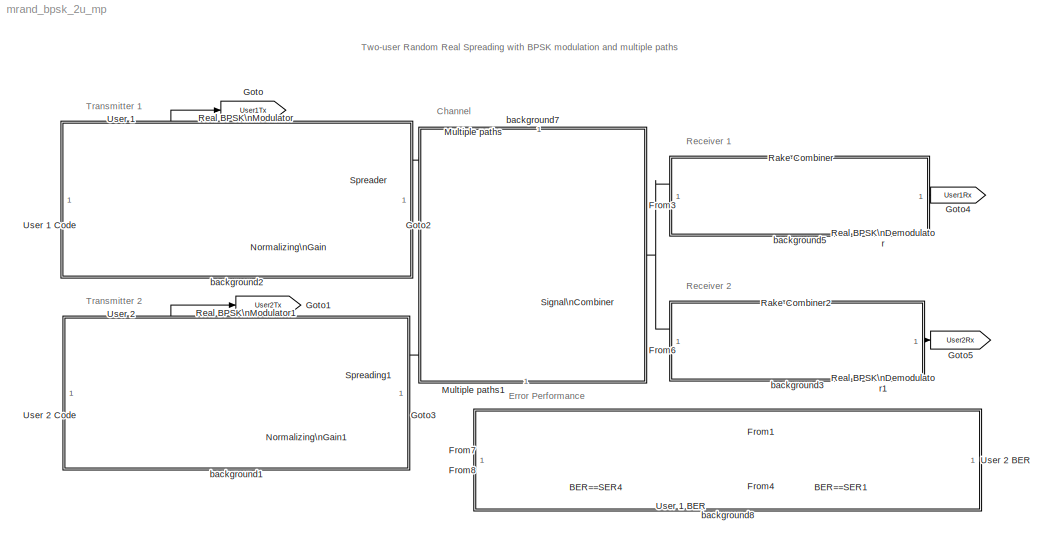
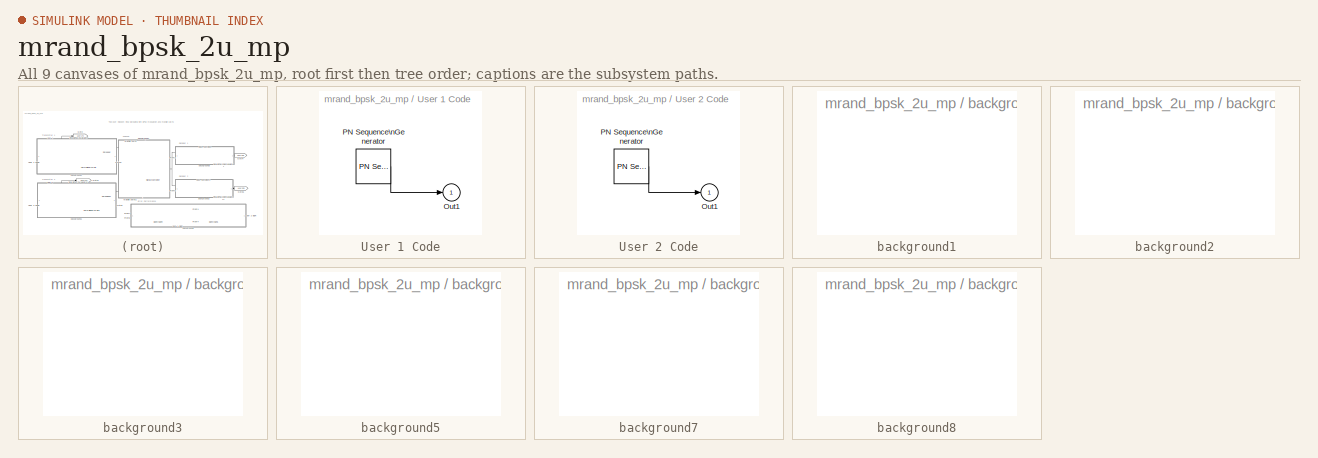
[diagram: thumbnail index - all 9 canvases of the model, root first then tree order]
MODEL mrand_bpsk_2u_mp
KIND model
BLOCK [Reference]    REF=commchan2/AWGN\nChannel
  EbNodB = 10
  EsNodB = 25
  Ports = [1, 1]
  Ps = 1
  SNRdB = 5
  ShowPortLabels = on
  SourceBlock = commchan2/AWGN\nChannel
  SourceType = AWGN Channel
  Tsym = ts
  bitsPerSym = 1
  noiseMode = Signal to noise ratio  (SNR)
  seed = 1237
  variance = 1
BLOCK [Reference]     REF=commutil2/Unipolar to\nBipolar\nConverter
  M = 2
  Ports = [1, 1]
  ShowPortLabels = on
  SourceBlock = commutil2/Unipolar to\nBipolar\nConverter
  SourceType = Unipolar to Bipolar Converter
  polarity = Negative
BLOCK [Reference]      REF=commutil2/Unipolar to\nBipolar\nConverter
  M = 2
  Ports = [1, 1]
  ShowPortLabels = on
  SourceBlock = commutil2/Unipolar to\nBipolar\nConverter
  SourceType = Unipolar to Bipolar Converter
  polarity = Negative
BLOCK [Reference] BER==SER1  REF=commsink2/Error Rate\nCalculation
  N = 0
  PMode = Port
  Ports = [2, 1]
  RsMode2 = off
  SourceBlock = commsink2/Error Rate\nCalculation
  SourceType = Error Rate Calculation
  WsName = ErrorVec
  cp_mode = Entire frame
  maxBits = 1e6
  numErr = 100
  st_delay = 0
  stop = off
  subframe = []
BLOCK [Reference] BER==SER4  REF=commsink2/Error Rate\nCalculation
  N = 0
  PMode = Port
  Ports = [2, 1]
  RsMode2 = off
  SourceBlock = commsink2/Error Rate\nCalculation
  SourceType = Error Rate Calculation
  WsName = ErrorVec
  cp_mode = Entire frame
  maxBits = 1e6
  numErr = 100
  st_delay = 0
  stop = off
  subframe = []
BLOCK [From] From1
  CloseFcn = tagdialog Close
  GotoTag = User2Tx
BLOCK [From] From3
  CloseFcn = tagdialog Close
  GotoTag = User1Code
BLOCK [From] From4
  CloseFcn = tagdialog Close
  GotoTag = User2Rx
BLOCK [From] From6
  CloseFcn = tagdialog Close
  GotoTag = User2Code
BLOCK [From] From7
  CloseFcn = tagdialog Close
  GotoTag = User1Tx
BLOCK [From] From8
  CloseFcn = tagdialog Close
  GotoTag = User1Rx
BLOCK [Goto] Goto
  GotoTag = User1Tx
  TagVisibility = local
BLOCK [Goto] Goto1
  GotoTag = User2Tx
  TagVisibility = local
BLOCK [Goto] Goto2
  GotoTag = User1Code
  TagVisibility = local
BLOCK [Goto] Goto3
  GotoTag = User2Code
  TagVisibility = local
BLOCK [Goto] Goto4
  GotoTag = User1Rx
  TagVisibility = local
BLOCK [Goto] Goto5
  GotoTag = User2Rx
  TagVisibility = local
BLOCK [Reference] Multiple paths  REF=mspread/Multiple paths  (lib defined in mdl_3dcc25b7f51f)
  Ports = [1, 1]
  ShowPortLabels = on
  SourceBlock = mspread/Multiple paths
  SourceType = Multiple Paths
  p = 3
  pd = [0 2 6]
  ts = 1/19200
BLOCK [Reference] Multiple paths1  REF=mspread/Multiple paths  (lib defined in mdl_3dcc25b7f51f)
  Ports = [1, 1]
  ShowPortLabels = on
  SourceBlock = mspread/Multiple paths
  SourceType = Multiple Paths
  p = 3
  pd = [0 3 5]
  ts = 1/19200
BLOCK [Gain] Normalizing\nGain
  Gain = 1/sqrt(63)
BLOCK [Gain] Normalizing\nGain1
  Gain = 1/sqrt(63)
BLOCK [Reference] Rake Combiner  REF=mspread/Rake Combiner  (lib defined in mdl_3dcc25b7f51f)
  Ports = [2, 1]
  ShowPortLabels = on
  SourceBlock = mspread/Rake Combiner
  SourceType = Rake combiner
  pd = [0 2 6]
  pgain = 63
BLOCK [Reference] Rake Combiner2  REF=mspread/Rake Combiner  (lib defined in mdl_3dcc25b7f51f)
  Ports = [2, 1]
  ShowPortLabels = on
  SourceBlock = mspread/Rake Combiner
  SourceType = Rake combiner
  pd = [0 3 5]
  pgain = 63
BLOCK [Reference] Real BPSK\nDemodulator  REF=mspread/Real BPSK\nDemodulator  (lib defined in mdl_3dcc25b7f51f)
  Ports = [1, 1]
  ShowPortLabels = on
  SourceBlock = mspread/Real BPSK\nDemodulator
  SourceType = Real BPSK Demodulator
BLOCK [Reference] Real BPSK\nDemodulator1  REF=mspread/Real BPSK\nDemodulator  (lib defined in mdl_3dcc25b7f51f)
  Ports = [1, 1]
  ShowPortLabels = on
  SourceBlock = mspread/Real BPSK\nDemodulator
  SourceType = Real BPSK Demodulator
BLOCK [Reference] Real BPSK\nModulator  REF=mspread/Real BPSK\nModulator  (lib defined in mdl_3dcc25b7f51f)
  Ports = [1, 1]
  ShowPortLabels = on
  SourceBlock = mspread/Real BPSK\nModulator
  SourceType = Real BPSK Modulator
BLOCK [Reference] Real BPSK\nModulator1  REF=mspread/Real BPSK\nModulator  (lib defined in mdl_3dcc25b7f51f)
  Ports = [1, 1]
  ShowPortLabels = on
  SourceBlock = mspread/Real BPSK\nModulator
  SourceType = Real BPSK Modulator
BLOCK [Sum] Signal\nCombiner
  InputSameDT = off
  OutDataTypeMode = Inherit via internal rule
  Ports = [2, 1]
BLOCK [Product] Spreader
  Ports = [2, 1]
  RndMeth = Floor
BLOCK [Product] Spreading1
  Ports = [2, 1]
  RndMeth = Floor
BLOCK [Reference] User 1  REF=commrandsrc2/Random Integer\nGenerator
  Ports = [0, 1]
  ShowPortLabels = on
  SourceBlock = commrandsrc2/Random Integer\nGenerator
  SourceType = Random Integer Generator
  Ts = 1/19200
  frameBased = on
  mul = 2
  orient = off
  sampPerFrame = 1
  seed = 37
BLOCK [Display] User 1 BER 
  Decimation = 1
  Ports = [1]
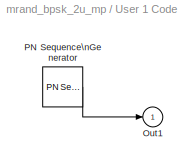
BLOCK [SubSystem] User 1 Code
  AttributesFormatString = %<BlockChoice>
  BlockChoice = PN Sequence Generator
  MemberBlocks = Gold Sequence Generator,Kasami Sequence Generator,PN Sequence Generator
  Ports = [0, 1]
  TemplateBlock = randcodes/Configurable System
  TreatAsAtomicUnit = off
BLOCK [Outport] User 1 Code/Out1
  IconDisplay = Port number
BLOCK [Reference] User 1 Code/PN Sequence\nGenerator  REF=commseqgen2/PN Sequence\nGenerator
  Ports = [0, 1]
  SourceBlock = commseqgen2/PN Sequence\nGenerator
  SourceType = PN Sequence Generator
  Ts = 1/(19200*63)
  frameBased = on
  ini_sta = [0 0 0 0 0 1]
  poly = [1 0 0 0 0 1 1]
  reset = off
  sampPerFrame = 63
  shift = 0
BLOCK [Reference] User 2  REF=commrandsrc2/Random Integer\nGenerator
  Ports = [0, 1]
  ShowPortLabels = on
  SourceBlock = commrandsrc2/Random Integer\nGenerator
  SourceType = Random Integer Generator
  Ts = 1/19200
  frameBased = on
  mul = 2
  orient = off
  sampPerFrame = 1
  seed = 631
BLOCK [Display] User 2 BER 
  Decimation = 1
  Ports = [1]
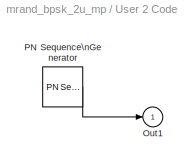
BLOCK [SubSystem] User 2 Code
  AttributesFormatString = %<BlockChoice>
  BlockChoice = PN Sequence Generator
  MemberBlocks = Gold Sequence Generator,Kasami Sequence Generator,PN Sequence Generator
  Ports = [0, 1]
  TemplateBlock = randcodes/Configurable System
  TreatAsAtomicUnit = off
BLOCK [Outport] User 2 Code/Out1
  IconDisplay = Port number
BLOCK [Reference] User 2 Code/PN Sequence\nGenerator  REF=commseqgen2/PN Sequence\nGenerator
  Ports = [0, 1]
  SourceBlock = commseqgen2/PN Sequence\nGenerator
  SourceType = PN Sequence Generator
  Ts = 1/(19200*63)
  frameBased = on
  ini_sta = [0 0 0 0 0 1]
  poly = [1 1 0 1 1 0 1]
  reset = off
  sampPerFrame = 63
  shift = 0
BLOCK [SubSystem] background1
  MaskDisplay = disp('')
  MaskIconFrame = on
  MaskIconOpaque = on
  MaskIconRotate = none
  MaskIconUnits = autoscale
  Ports = []
  TreatAsAtomicUnit = off
BLOCK [SubSystem] background2
  MaskDisplay = disp('')
  MaskIconFrame = on
  MaskIconOpaque = on
  MaskIconRotate = none
  MaskIconUnits = autoscale
  Ports = []
  TreatAsAtomicUnit = off
BLOCK [SubSystem] background3
  MaskDisplay = disp('')
  MaskIconFrame = on
  MaskIconOpaque = on
  MaskIconRotate = none
  MaskIconUnits = autoscale
  Ports = []
  TreatAsAtomicUnit = off
BLOCK [SubSystem] background5
  MaskDisplay = disp('')
  MaskIconFrame = on
  MaskIconOpaque = on
  MaskIconRotate = none
  MaskIconUnits = autoscale
  Ports = []
  TreatAsAtomicUnit = off
BLOCK [SubSystem] background7
  MaskDisplay = disp('')
  MaskIconFrame = on
  MaskIconOpaque = on
  MaskIconRotate = none
  MaskIconUnits = autoscale
  Ports = []
  TreatAsAtomicUnit = off
BLOCK [SubSystem] background8
  MaskDisplay = disp('')
  MaskIconFrame = on
  MaskIconOpaque = on
  MaskIconRotate = none
  MaskIconUnits = autoscale
  Ports = []
  TreatAsAtomicUnit = off
ANNOTATION (root): Channel
ANNOTATION (root): Error Performance
ANNOTATION (root): Receiver 1
ANNOTATION (root): Receiver 2
ANNOTATION (root): Transmitter 1
ANNOTATION (root): Transmitter 2
ANNOTATION (root): Two-user Random Real Spreading with BPSK modulation and multiple paths
LINE    :1 -> Normalizing\nGain1:1
LINE   :1 -> Normalizing\nGain:1
NET  :1 -> Rake Combiner2:1, Rake Combiner:1
LINE BER==SER1:1 -> User 2 BER :1
LINE BER==SER4:1 -> User 1 BER :1
LINE From1:1 -> BER==SER1:1
LINE From3:1 -> Rake Combiner:2
LINE From4:1 -> BER==SER1:2
LINE From6:1 -> Rake Combiner2:2
LINE From7:1 -> BER==SER4:1
LINE From8:1 -> BER==SER4:2
LINE Multiple paths1:1 -> Signal\nCombiner:2
LINE Multiple paths:1 -> Signal\nCombiner:1
NET Normalizing\nGain1:1 -> Goto3:1, Spreading1:2
NET Normalizing\nGain:1 -> Goto2:1, Spreader:2
LINE Rake Combiner2:1 -> Real BPSK\nDemodulator1:1
LINE Rake Combiner:1 -> Real BPSK\nDemodulator:1
LINE Real BPSK\nDemodulator1:1 -> Goto5:1
LINE Real BPSK\nDemodulator:1 -> Goto4:1
LINE Real BPSK\nModulator1:1 -> Spreading1:1
LINE Real BPSK\nModulator:1 -> Spreader:1
LINE Signal\nCombiner:1 ->  :1
LINE Spreader:1 -> Multiple paths:1
LINE Spreading1:1 -> Multiple paths1:1
LINE User 1 Code/PN Sequence\nGenerator:1 -> User 1 Code/Out1:1
LINE User 1 Code:1 ->   :1
NET User 1:1 -> Goto:1, Real BPSK\nModulator:1
LINE User 2 Code/PN Sequence\nGenerator:1 -> User 2 Code/Out1:1
LINE User 2 Code:1 ->    :1
NET User 2:1 -> Goto1:1, Real BPSK\nModulator1:1
note: NET lines group one-source signal fan-out (src -> all destinations, sorted); 1:1 wires keep LINE
